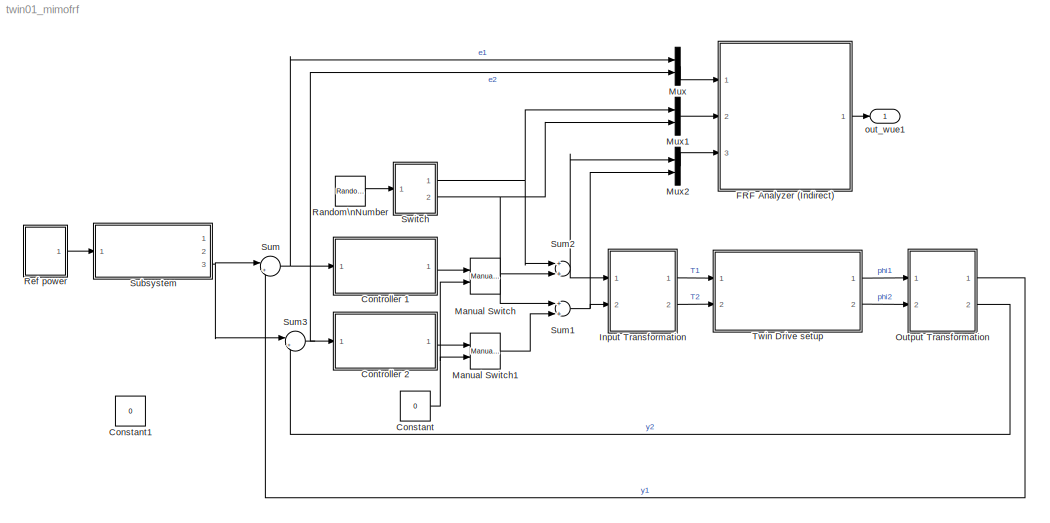
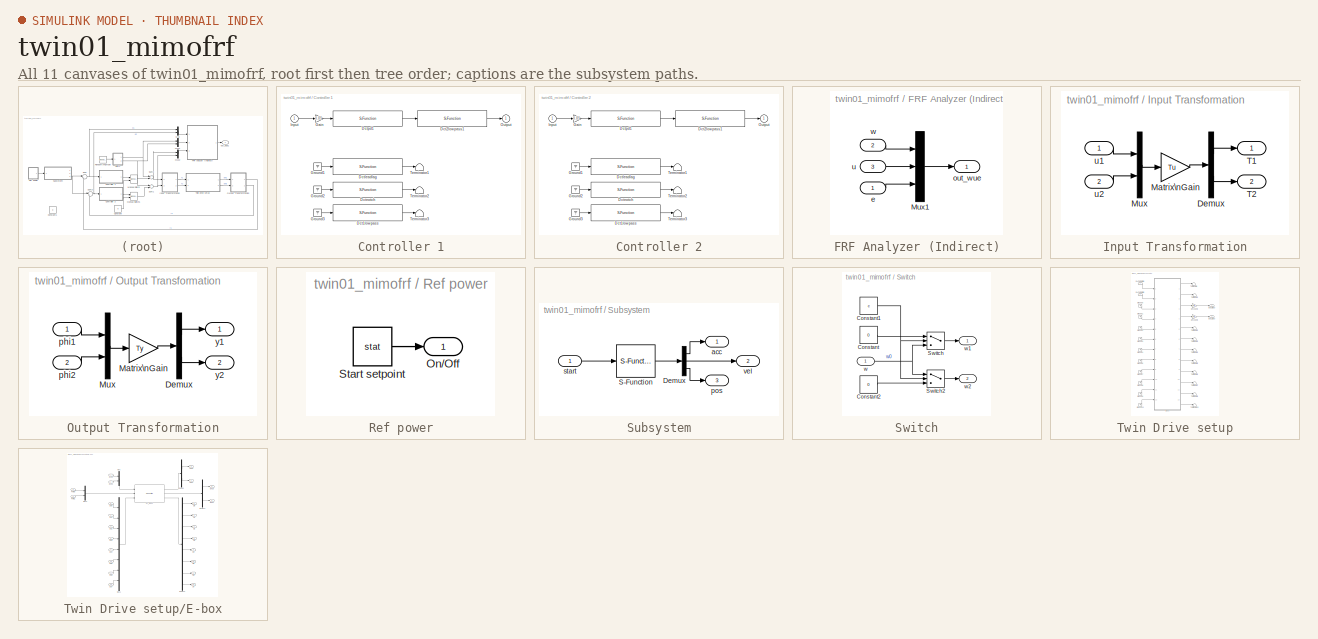
[diagram: thumbnail index - all 11 canvases of the model, root first then tree order]
MODEL twin01_mimofrf
KIND model
BLOCK [Constant] Constant
  SID = 1
  Value = 0
BLOCK [Constant] Constant1
  SID = 2
  Value = 0
BLOCK [SubSystem] Controller 1
  FunctionWithSeparateData = off
  MaskHideContents = off
  MinAlgLoopOccurrences = off
  Opaque = off
  Ports = [1, 1]
  PropExecContextOutsideSubsystem = off
  RTWSystemCode = Auto
  RequestExecContextInheritance = off
  SID = 198
BLOCK [S-Function] Controller 1/Dct1lowpass
  EnableBusSupport = off
  FunctionName = dlowpass1
  MaskDescription = This block implements a discrete time 1st order lowpass filter.
  MaskDisplay = disp('DCT 1st order lowpass')
  MaskEnableString = on
  MaskIconFrame = on
  MaskIconOpaque = on
  MaskIconRotate = none
  MaskIconUnits = autoscale
  MaskPortRotate = default
  MaskPromptString = Pole [Hz]
  MaskStyleString = edit
  MaskToolTipString = on
  MaskTunableValueString = on
  MaskType = dctools
  MaskValueString = 100
  MaskVariables = f_den=@1;
  MaskVisibilityString = on
  Parameters = f_den, 0.001
  Ports = [1, 1]
  SID = 200
BLOCK [S-Function] Controller 1/Dct2lowpass1
  EnableBusSupport = off
  FunctionName = dlowpass2
  MaskCallbackString = |
  MaskDescription = This block implements a discrete time 2nd order lowpass filter.
  MaskDisplay = disp('DCT 2nd order lowpass')
  MaskEnableString = on,on
  MaskIconFrame = on
  MaskIconOpaque = on
  MaskIconRotate = none
  MaskIconUnits = autoscale
  MaskPortRotate = default
  MaskPromptString = Pole [Hz]|Damping pole [-]
  MaskStyleString = edit,edit
  MaskToolTipString = on,on
  MaskTunableValueString = on,on
  MaskType = dctools
  MaskValueString = 200|0.6
  MaskVariables = f_den=@1;b_den=@2;
  MaskVisibilityString = on,on
  Parameters = f_den, b_den, 0.001
  Ports = [1, 1]
  SID = 201
BLOCK [S-Function] Controller 1/Dctleadlag
  EnableBusSupport = off
  FunctionName = dleadlag
  MaskCallbackString = |
  MaskDescription = This block implements a discrete time leadlag filter.
  MaskDisplay = disp('DCT leadlag')
  MaskEnableString = on,on
  MaskIconFrame = on
  MaskIconOpaque = on
  MaskIconRotate = none
  MaskIconUnits = autoscale
  MaskPortRotate = default
  MaskPromptString = Zero [Hz]|Pole [Hz]
  MaskStyleString = edit,edit
  MaskToolTipString = on,on
  MaskTunableValueString = on,on
  MaskType = dctools
  MaskValueString = 10|100
  MaskVariables = f_num=@1;f_den=@2;
  MaskVisibilityString = on,on
  Parameters = f_num, f_den, 0.001
  Ports = [1, 1]
  SID = 202
BLOCK [S-Function] Controller 1/Dctnotch
  EnableBusSupport = off
  FunctionName = dnotch
  MaskCallbackString = |||
  MaskDescription = This block implements a dicrete time 2nd order notch filter.
  MaskDisplay = disp('DCT notch')
  MaskEnableString = on,on,on,on
  MaskIconFrame = on
  MaskIconOpaque = on
  MaskIconRotate = none
  MaskIconUnits = autoscale
  MaskPortRotate = default
  MaskPromptString = Zero [Hz]|Damping zero [-]|Pole [Hz]|Damping pole [-]
  MaskStyleString = edit,edit,edit,edit
  MaskToolTipString = on,on,on,on
  MaskTunableValueString = on,on,on,on
  MaskType = dctools
  MaskValueString = 100|.1|100|.1
  MaskVariables = f_num=@1;b_num=@2;f_den=@3;b_den=@4;
  MaskVisibilityString = on,on,on,on
  Parameters = f_num, b_num, f_den, b_den, 0.001
  Ports = [1, 1]
  SID = 203
BLOCK [S-Function] Controller 1/Dctpd1
  EnableBusSupport = off
  FunctionName = dpd
  MaskCallbackString = |
  MaskDescription = This block implements a discrete time pd filter.
  MaskDisplay = disp('DCT pd')
  MaskEnableString = on,on
  MaskIconFrame = on
  MaskIconOpaque = on
  MaskIconRotate = none
  MaskIconUnits = autoscale
  MaskPortRotate = default
  MaskPromptString = Kp|Kv
  MaskStyleString = edit,edit
  MaskToolTipString = on,on
  MaskTunableValueString = on,on
  MaskType = dctools
  MaskValueString = 1|1/2/pi
  MaskVariables = kp=@1;kv=@2;
  MaskVisibilityString = on,on
  Parameters = kp, kv, 0.001
  Ports = [1, 1]
  SID = 204
BLOCK [Gain] Controller 1/Gain
  Gain = 0.05
  SID = 205
BLOCK [Ground] Controller 1/Ground1
  SID = 206
BLOCK [Ground] Controller 1/Ground2
  SID = 207
BLOCK [Ground] Controller 1/Ground3
  SID = 208
BLOCK [Inport] Controller 1/Input
  IconDisplay = Port number
  SID = 199
BLOCK [Outport] Controller 1/Output
  IconDisplay = Port number
  SID = 212
BLOCK [Terminator] Controller 1/Terminator1
  SID = 209
BLOCK [Terminator] Controller 1/Terminator2
  SID = 210
BLOCK [Terminator] Controller 1/Terminator3
  SID = 211
BLOCK [SubSystem] Controller 2
  FunctionWithSeparateData = off
  MaskHideContents = off
  MinAlgLoopOccurrences = off
  Opaque = off
  Ports = [1, 1]
  PropExecContextOutsideSubsystem = off
  RTWSystemCode = Auto
  RequestExecContextInheritance = off
  SID = 213
BLOCK [S-Function] Controller 2/Dct1lowpass
  EnableBusSupport = off
  FunctionName = dlowpass1
  MaskDescription = This block implements a discrete time 1st order lowpass filter.
  MaskDisplay = disp('DCT 1st order lowpass')
  MaskEnableString = on
  MaskIconFrame = on
  MaskIconOpaque = on
  MaskIconRotate = none
  MaskIconUnits = autoscale
  MaskPortRotate = default
  MaskPromptString = Pole [Hz]
  MaskStyleString = edit
  MaskToolTipString = on
  MaskTunableValueString = on
  MaskType = dctools
  MaskValueString = 100
  MaskVariables = f_den=@1;
  MaskVisibilityString = on
  Parameters = f_den, 0.001
  Ports = [1, 1]
  SID = 215
BLOCK [S-Function] Controller 2/Dct2lowpass1
  EnableBusSupport = off
  FunctionName = dlowpass2
  MaskCallbackString = |
  MaskDescription = This block implements a discrete time 2nd order lowpass filter.
  MaskDisplay = disp('DCT 2nd order lowpass')
  MaskEnableString = on,on
  MaskIconFrame = on
  MaskIconOpaque = on
  MaskIconRotate = none
  MaskIconUnits = autoscale
  MaskPortRotate = default
  MaskPromptString = Pole [Hz]|Damping pole [-]
  MaskStyleString = edit,edit
  MaskToolTipString = on,on
  MaskTunableValueString = on,on
  MaskType = dctools
  MaskValueString = 200|0.6
  MaskVariables = f_den=@1;b_den=@2;
  MaskVisibilityString = on,on
  Parameters = f_den, b_den, 0.001
  Ports = [1, 1]
  SID = 216
BLOCK [S-Function] Controller 2/Dctleadlag
  EnableBusSupport = off
  FunctionName = dleadlag
  MaskCallbackString = |
  MaskDescription = This block implements a discrete time leadlag filter.
  MaskDisplay = disp('DCT leadlag')
  MaskEnableString = on,on
  MaskIconFrame = on
  MaskIconOpaque = on
  MaskIconRotate = none
  MaskIconUnits = autoscale
  MaskPortRotate = default
  MaskPromptString = Zero [Hz]|Pole [Hz]
  MaskStyleString = edit,edit
  MaskToolTipString = on,on
  MaskTunableValueString = on,on
  MaskType = dctools
  MaskValueString = 10|100
  MaskVariables = f_num=@1;f_den=@2;
  MaskVisibilityString = on,on
  Parameters = f_num, f_den, 0.001
  Ports = [1, 1]
  SID = 217
BLOCK [S-Function] Controller 2/Dctnotch
  EnableBusSupport = off
  FunctionName = dnotch
  MaskCallbackString = |||
  MaskDescription = This block implements a dicrete time 2nd order notch filter.
  MaskDisplay = disp('DCT notch')
  MaskEnableString = on,on,on,on
  MaskIconFrame = on
  MaskIconOpaque = on
  MaskIconRotate = none
  MaskIconUnits = autoscale
  MaskPortRotate = default
  MaskPromptString = Zero [Hz]|Damping zero [-]|Pole [Hz]|Damping pole [-]
  MaskStyleString = edit,edit,edit,edit
  MaskToolTipString = on,on,on,on
  MaskTunableValueString = on,on,on,on
  MaskType = dctools
  MaskValueString = 100|.1|100|.1
  MaskVariables = f_num=@1;b_num=@2;f_den=@3;b_den=@4;
  MaskVisibilityString = on,on,on,on
  Parameters = f_num, b_num, f_den, b_den, 0.001
  Ports = [1, 1]
  SID = 218
BLOCK [S-Function] Controller 2/Dctpd1
  EnableBusSupport = off
  FunctionName = dpd
  MaskCallbackString = |
  MaskDescription = This block implements a discrete time pd filter.
  MaskDisplay = disp('DCT pd')
  MaskEnableString = on,on
  MaskIconFrame = on
  MaskIconOpaque = on
  MaskIconRotate = none
  MaskIconUnits = autoscale
  MaskPortRotate = default
  MaskPromptString = Kp|Kv
  MaskStyleString = edit,edit
  MaskToolTipString = on,on
  MaskTunableValueString = on,on
  MaskType = dctools
  MaskValueString = 1|1/2/pi
  MaskVariables = kp=@1;kv=@2;
  MaskVisibilityString = on,on
  Parameters = kp, kv, 0.001
  Ports = [1, 1]
  SID = 219
BLOCK [Gain] Controller 2/Gain
  Gain = 0.05
  SID = 220
BLOCK [Ground] Controller 2/Ground1
  SID = 221
BLOCK [Ground] Controller 2/Ground2
  SID = 222
BLOCK [Ground] Controller 2/Ground3
  SID = 223
BLOCK [Inport] Controller 2/Input
  IconDisplay = Port number
  SID = 214
BLOCK [Outport] Controller 2/Output
  IconDisplay = Port number
  SID = 227
BLOCK [Terminator] Controller 2/Terminator1
  SID = 224
BLOCK [Terminator] Controller 2/Terminator2
  SID = 225
BLOCK [Terminator] Controller 2/Terminator3
  SID = 226
BLOCK [SubSystem] FRF Analyzer (Indirect)
  FunctionWithSeparateData = off
  MaskHideContents = off
  MinAlgLoopOccurrences = off
  Opaque = off
  OpenFcn = calcfrfindirectmimo(1,1000)
  Ports = [3, 1]
  PropExecContextOutsideSubsystem = off
  RTWSystemCode = Auto
  RequestExecContextInheritance = off
  SID = 33
BLOCK [Mux] FRF Analyzer (Indirect)/Mux1
  DisplayOption = bar
  Inputs = 3
  Ports = [3, 1]
  SID = 37
BLOCK [Inport] FRF Analyzer (Indirect)/e
  IconDisplay = Port number
  SID = 34
BLOCK [Outport] FRF Analyzer (Indirect)/out_wue
  IconDisplay = Port number
  OpenFcn = frf3(1,10000)
  SID = 38
BLOCK [Inport] FRF Analyzer (Indirect)/u
  IconDisplay = Port number
  Port = 3
  SID = 36
BLOCK [Inport] FRF Analyzer (Indirect)/w
  IconDisplay = Port number
  Port = 2
  SID = 35
BLOCK [SubSystem] Input Transformation
  FunctionWithSeparateData = off
  MaskDescription = This block performs an input transformation of the form:\n[T1;T2]=Tu*[u1;u2]\n
  MaskEnableString = on
  MaskHideContents = off
  MaskIconFrame = on
  MaskIconOpaque = on
  MaskIconRotate = none
  MaskIconUnits = autoscale
  MaskPortRotate = default
  MaskPromptString = What is the input transformation matrix Tu?
  MaskStyleString = edit
  MaskToolTipString = on
  MaskTunableValueString = on
  MaskType = Input Transformation
  MaskValueString = [1 0; 0 1]
  MaskVariables = Tu=@1;
  MaskVisibilityString = on
  MinAlgLoopOccurrences = off
  Opaque = off
  Ports = [2, 2]
  PropExecContextOutsideSubsystem = off
  RTWSystemCode = Auto
  RequestExecContextInheritance = off
  SID = 39
BLOCK [Demux] Input Transformation/Demux
  Outputs = 2
  Ports = [1, 2]
  SID = 42
BLOCK [Gain] Input Transformation/Matrix\nGain
  Gain = Tu
  Multiplication = Matrix(K*u)
  SID = 43
BLOCK [Mux] Input Transformation/Mux
  DisplayOption = bar
  Inputs = 2
  Ports = [2, 1]
  SID = 44
BLOCK [Outport] Input Transformation/T1
  IconDisplay = Port number
  SID = 45
BLOCK [Outport] Input Transformation/T2
  IconDisplay = Port number
  Port = 2
  SID = 46
BLOCK [Inport] Input Transformation/u1
  IconDisplay = Port number
  SID = 40
BLOCK [Inport] Input Transformation/u2
  IconDisplay = Port number
  Port = 2
  SID = 41
BLOCK [Reference] Manual Switch  REF=simulink/Signal\nRouting/Manual Switch
  Ports = [2, 1]
  SID = 47
  SourceBlock = simulink/Signal\nRouting/Manual Switch
  SourceType = Manual Switch
  action = 0
  sw = 1
  varsize = off
BLOCK [Reference] Manual Switch1  REF=simulink/Signal\nRouting/Manual Switch
  Ports = [2, 1]
  SID = 48
  SourceBlock = simulink/Signal\nRouting/Manual Switch
  SourceType = Manual Switch
  action = 0
  sw = 1
  varsize = off
BLOCK [Mux] Mux
  DisplayOption = bar
  Inputs = 2
  Ports = [2, 1]
  SID = 49
BLOCK [Mux] Mux1
  DisplayOption = bar
  Inputs = 2
  Ports = [2, 1]
  SID = 50
BLOCK [Mux] Mux2
  DisplayOption = bar
  Inputs = 2
  Ports = [2, 1]
  SID = 51
BLOCK [SubSystem] Output Transformation
  FunctionWithSeparateData = off
  MaskDescription = This block performs an output transformation of the form:\n[y1;y2]=Ty*[phi1;phi2]
  MaskEnableString = on
  MaskHideContents = off
  MaskIconFrame = on
  MaskIconOpaque = on
  MaskIconRotate = none
  MaskIconUnits = autoscale
  MaskPortRotate = default
  MaskPromptString = What is the output transformation matrix Ty?
  MaskStyleString = edit
  MaskToolTipString = on
  MaskTunableValueString = on
  MaskType = Iutput Transformation
  MaskValueString = [1 0; 0 1]
  MaskVariables = Ty=@1;
  MaskVisibilityString = on
  MinAlgLoopOccurrences = off
  Opaque = off
  Ports = [2, 2]
  PropExecContextOutsideSubsystem = off
  RTWSystemCode = Auto
  RequestExecContextInheritance = off
  SID = 52
BLOCK [Demux] Output Transformation/Demux
  Outputs = 2
  Ports = [1, 2]
  SID = 55
BLOCK [Gain] Output Transformation/Matrix\nGain
  Gain = Ty
  Multiplication = Matrix(K*u)
  SID = 56
BLOCK [Mux] Output Transformation/Mux
  DisplayOption = bar
  Inputs = 2
  Ports = [2, 1]
  SID = 57
BLOCK [Inport] Output Transformation/phi1
  IconDisplay = Port number
  SID = 53
BLOCK [Inport] Output Transformation/phi2
  IconDisplay = Port number
  Port = 2
  SID = 54
BLOCK [Outport] Output Transformation/y1
  IconDisplay = Port number
  SID = 58
BLOCK [Outport] Output Transformation/y2
  IconDisplay = Port number
  Port = 2
  SID = 59
BLOCK [RandomNumber] Random\nNumber
  SID = 60
  SampleTime = 0
  Variance = 0.2
BLOCK [SubSystem] Ref power
  FunctionWithSeparateData = off
  MaskEnableString = on
  MaskHideContents = off
  MaskIconFrame = on
  MaskIconOpaque = off
  MaskIconRotate = none
  MaskIconUnits = autoscale
  MaskPortRotate = default
  MaskPromptString = Switch
  MaskStyleString = popup(On|Off)
  MaskToolTipString = on
  MaskTunableValueString = on
  MaskType = On/Off Switch
  MaskValueString = Off
  MaskVariables = stat=@1;
  MaskVisibilityString = on
  MinAlgLoopOccurrences = off
  Opaque = off
  Ports = [0, 1]
  PropExecContextOutsideSubsystem = off
  RTWSystemCode = Auto
  RequestExecContextInheritance = off
  SID = 188
BLOCK [Outport] Ref power/On//Off
  IconDisplay = Port number
  SID = 190
BLOCK [Constant] Ref power/Start setpoint
  SID = 189
  Value = stat
BLOCK [SubSystem] Subsystem
  FunctionWithSeparateData = off
  MaskDisplay = disp('Ref3');\n
  MaskHideContents = off
  MaskIconFrame = off
  MaskIconOpaque = off
  MaskIconRotate = none
  MaskIconUnits = autoscale
  MaskPortRotate = default
  MaskType = Ref3
  MinAlgLoopOccurrences = off
  Opaque = off
  OpenFcn = global ref_part; cb_axes 1
  Ports = [1, 3]
  PropExecContextOutsideSubsystem = off
  RTWSystemCode = Auto
  RequestExecContextInheritance = off
  SID = 191
BLOCK [Demux] Subsystem/Demux
  Outputs = 3
  Ports = [1, 3]
  SID = 193
BLOCK [S-Function] Subsystem/S-Function
  EnableBusSupport = off
  FunctionName = ref3b
  OpenFcn = global ref_part; r3g_main
  Parameters = ref_part
  Ports = [1, 1]
  SID = 194
BLOCK [Outport] Subsystem/acc
  IconDisplay = Port number
  SID = 195
BLOCK [Outport] Subsystem/pos
  IconDisplay = Port number
  Port = 3
  SID = 197
BLOCK [Inport] Subsystem/start
  IconDisplay = Port number
  SID = 192
BLOCK [Outport] Subsystem/vel
  IconDisplay = Port number
  Port = 2
  SID = 196
BLOCK [Sum] Sum
  IconShape = round
  Inputs = |+-
  Ports = [2, 1]
  SID = 70
BLOCK [Sum] Sum1
  Description = sumff
  Ports = [2, 1]
  SID = 71
BLOCK [Sum] Sum2
  Description = sumff
  Ports = [2, 1]
  SID = 72
BLOCK [Sum] Sum3
  IconShape = round
  Inputs = |+-
  Ports = [2, 1]
  SID = 73
BLOCK [SubSystem] Switch
  FunctionWithSeparateData = off
  MaskEnableString = on
  MaskHideContents = off
  MaskIconFrame = on
  MaskIconOpaque = on
  MaskIconRotate = none
  MaskIconUnits = autoscale
  MaskPortRotate = default
  MaskPromptString = In which loop noise? 1 for loop 1 or 2 for loop 2
  MaskStyleString = edit
  MaskToolTipString = on
  MaskTunableValueString = on
  MaskType = Switch
  MaskValueString = 1
  MaskVariables = c=@1;
  MaskVisibilityString = on
  MinAlgLoopOccurrences = off
  Opaque = off
  Ports = [1, 2]
  PropExecContextOutsideSubsystem = off
  RTWSystemCode = Auto
  RequestExecContextInheritance = off
  SID = 74
BLOCK [Constant] Switch/Constant
  SID = 76
  Value = 0
BLOCK [Constant] Switch/Constant1
  SID = 77
  Value = c
BLOCK [Constant] Switch/Constant2
  SID = 78
  Value = 0
BLOCK [Switch] Switch/Switch
  SID = 79
  Threshold = 1.5
BLOCK [Switch] Switch/Switch2
  SID = 80
  Threshold = 1.5
BLOCK [Inport] Switch/w
  IconDisplay = Port number
  SID = 75
BLOCK [Outport] Switch/w1
  IconDisplay = Port number
  SID = 81
BLOCK [Outport] Switch/w2
  IconDisplay = Port number
  Port = 2
  SID = 82
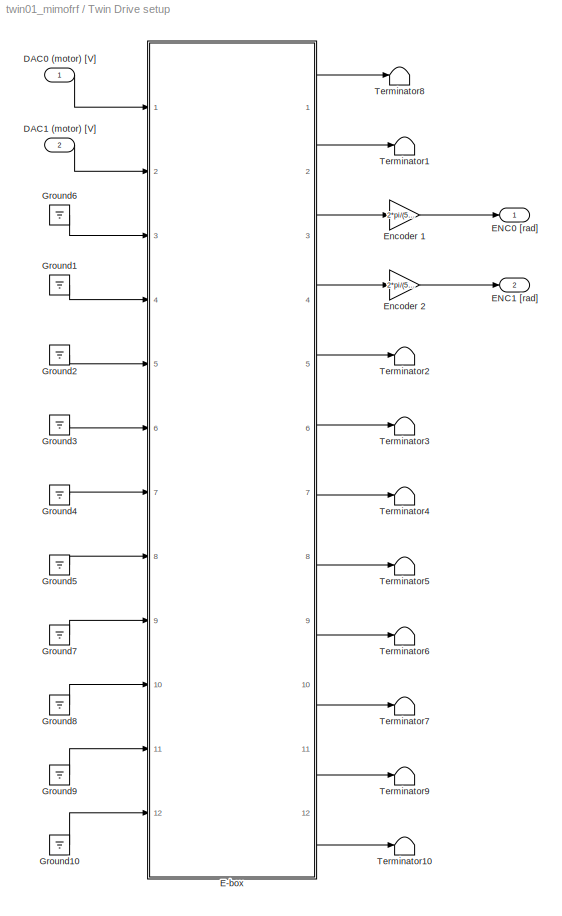
BLOCK [SubSystem] Twin Drive setup
  FunctionWithSeparateData = off
  MaskDescription = MIMO system with two inputs and two outputs.
  MaskDisplay = image(imread('twin.bmp'))
  MaskHideContents = off
  MaskIconFrame = on
  MaskIconOpaque = on
  MaskIconRotate = none
  MaskIconUnits = autoscale
  MaskPortRotate = default
  MaskType = Twin Drive
  MinAlgLoopOccurrences = off
  Opaque = off
  Ports = [2, 2]
  PropExecContextOutsideSubsystem = off
  RTWSystemCode = Auto
  RequestExecContextInheritance = off
  SID = 129
BLOCK [Inport] Twin Drive setup/DAC0 (motor) [V]
  IconDisplay = Port number
  SID = 130
BLOCK [Inport] Twin Drive setup/DAC1 (motor) [V]
  IconDisplay = Port number
  Port = 2
  SID = 131
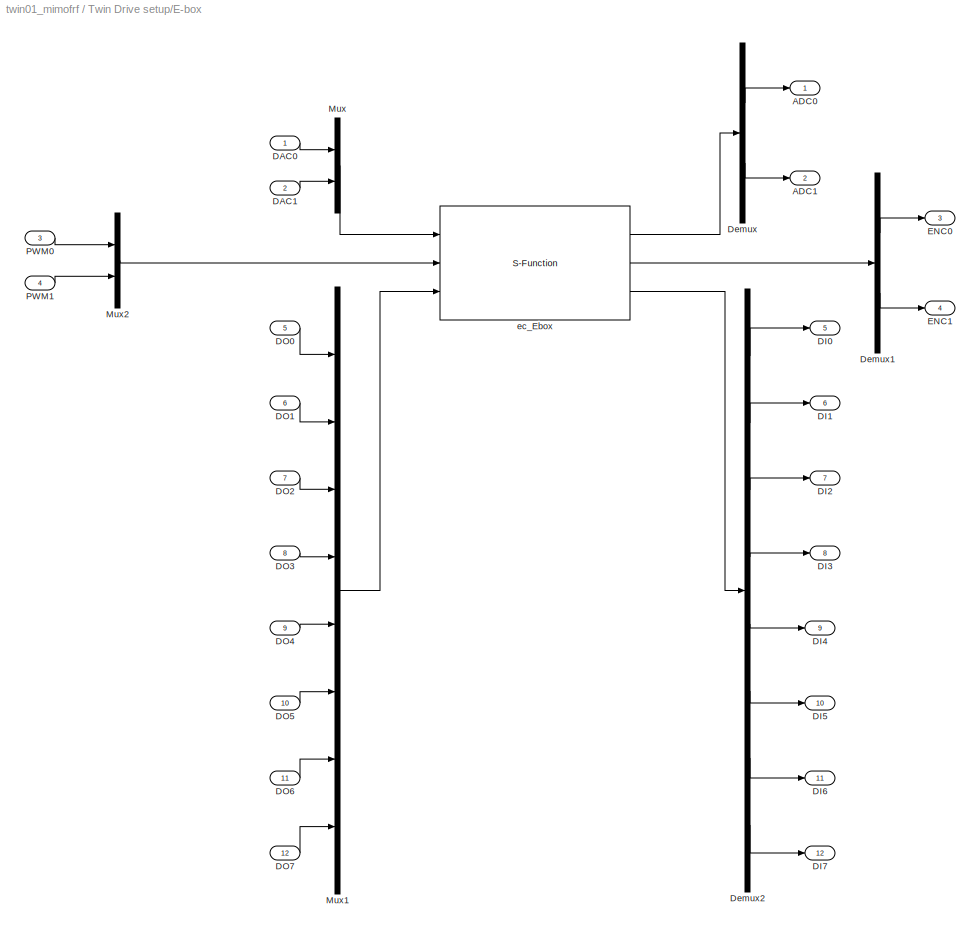
BLOCK [SubSystem] Twin Drive setup/E-box
  FunctionWithSeparateData = off
  MaskEnableString = on
  MaskHideContents = off
  MaskIconFrame = on
  MaskIconOpaque = on
  MaskIconRotate = none
  MaskIconUnits = autoscale
  MaskPortRotate = default
  MaskPromptString = Link id (>=0)
  MaskStyleString = edit
  MaskToolTipString = on
  MaskTunableValueString = on
  MaskType = E-box
  MaskValueString = 0
  MaskVariables = link_id=@1;
  MaskVisibilityString = on
  MinAlgLoopOccurrences = off
  Opaque = off
  Ports = [12, 12]
  PropExecContextOutsideSubsystem = off
  RTWSystemCode = Auto
  RequestExecContextInheritance = off
  SID = 132
BLOCK [Outport] Twin Drive setup/E-box/ADC0
  IconDisplay = Port number
  SID = 152
BLOCK [Outport] Twin Drive setup/E-box/ADC1
  IconDisplay = Port number
  Port = 2
  SID = 153
BLOCK [Inport] Twin Drive setup/E-box/DAC0
  IconDisplay = Port number
  SID = 133
BLOCK [Inport] Twin Drive setup/E-box/DAC1
  IconDisplay = Port number
  Port = 2
  SID = 134
BLOCK [Outport] Twin Drive setup/E-box/DI0
  IconDisplay = Port number
  Port = 5
  SID = 156
BLOCK [Outport] Twin Drive setup/E-box/DI1
  IconDisplay = Port number
  Port = 6
  SID = 157
BLOCK [Outport] Twin Drive setup/E-box/DI2
  IconDisplay = Port number
  Port = 7
  SID = 158
BLOCK [Outport] Twin Drive setup/E-box/DI3
  IconDisplay = Port number
  Port = 8
  SID = 159
BLOCK [Outport] Twin Drive setup/E-box/DI4
  IconDisplay = Port number
  Port = 9
  SID = 160
BLOCK [Outport] Twin Drive setup/E-box/DI5
  IconDisplay = Port number
  Port = 10
  SID = 161
BLOCK [Outport] Twin Drive setup/E-box/DI6
  IconDisplay = Port number
  Port = 11
  SID = 162
BLOCK [Outport] Twin Drive setup/E-box/DI7
  IconDisplay = Port number
  Port = 12
  SID = 163
BLOCK [Inport] Twin Drive setup/E-box/DO0
  IconDisplay = Port number
  Port = 5
  SID = 137
BLOCK [Inport] Twin Drive setup/E-box/DO1
  IconDisplay = Port number
  Port = 6
  SID = 138
BLOCK [Inport] Twin Drive setup/E-box/DO2
  IconDisplay = Port number
  Port = 7
  SID = 139
BLOCK [Inport] Twin Drive setup/E-box/DO3
  IconDisplay = Port number
  Port = 8
  SID = 140
BLOCK [Inport] Twin Drive setup/E-box/DO4
  IconDisplay = Port number
  Port = 9
  SID = 141
BLOCK [Inport] Twin Drive setup/E-box/DO5
  IconDisplay = Port number
  Port = 10
  SID = 142
BLOCK [Inport] Twin Drive setup/E-box/DO6
  IconDisplay = Port number
  Port = 11
  SID = 143
BLOCK [Inport] Twin Drive setup/E-box/DO7
  IconDisplay = Port number
  Port = 12
  SID = 144
BLOCK [Demux] Twin Drive setup/E-box/Demux
  DisplayOption = bar
  Outputs = 2
  Ports = [1, 2]
  SID = 145
BLOCK [Demux] Twin Drive setup/E-box/Demux1
  DisplayOption = bar
  Outputs = 2
  Ports = [1, 2]
  SID = 146
BLOCK [Demux] Twin Drive setup/E-box/Demux2
  DisplayOption = bar
  Outputs = 8
  Ports = [1, 8]
  SID = 147
BLOCK [Outport] Twin Drive setup/E-box/ENC0
  IconDisplay = Port number
  Port = 3
  SID = 154
BLOCK [Outport] Twin Drive setup/E-box/ENC1
  IconDisplay = Port number
  Port = 4
  SID = 155
BLOCK [Mux] Twin Drive setup/E-box/Mux
  DisplayOption = bar
  Inputs = 2
  Ports = [2, 1]
  SID = 148
BLOCK [Mux] Twin Drive setup/E-box/Mux1
  DisplayOption = bar
  Inputs = 8
  Ports = [8, 1]
  SID = 149
BLOCK [Mux] Twin Drive setup/E-box/Mux2
  DisplayOption = bar
  Inputs = 2
  Ports = [2, 1]
  SID = 150
BLOCK [Inport] Twin Drive setup/E-box/PWM0
  IconDisplay = Port number
  Port = 3
  SID = 135
BLOCK [Inport] Twin Drive setup/E-box/PWM1
  IconDisplay = Port number
  Port = 4
  SID = 136
BLOCK [S-Function] Twin Drive setup/E-box/ec_Ebox
  EnableBusSupport = off
  FunctionName = ec_Ebox
  MaskDisplay = port_label('output',1,'ADC')\nport_label('output',2,'ENC')\nport_label('output',3,'DI')\nport_label('input',1,'DAC')\nport_label('input',2,'PWM')\nport_label('input',3,'DO')
  MaskEnableString = on
  MaskIconFrame = on
  MaskIconOpaque = on
  MaskIconRotate = none
  MaskIconUnits = autoscale
  MaskPortRotate = default
  MaskPromptString = analog in id (start from 1)
  MaskStyleString = edit
  MaskToolTipString = on
  MaskTunableValueString = on
  MaskValueString = link_id
  MaskVariables = link_id=@1;
  MaskVisibilityString = on
  Parameters = link_id
  Ports = [3, 3]
  SID = 151
BLOCK [Outport] Twin Drive setup/ENC0 [rad]
  IconDisplay = Port number
  SID = 186
BLOCK [Outport] Twin Drive setup/ENC1 [rad]
  IconDisplay = Port number
  Port = 2
  SID = 187
BLOCK [Gain] Twin Drive setup/Encoder 1
  Gain = 2*pi/(500*4)
  SID = 164
BLOCK [Gain] Twin Drive setup/Encoder 2
  Gain = 2*pi/(500*4)
  SID = 165
BLOCK [Ground] Twin Drive setup/Ground1
  SID = 166
BLOCK [Ground] Twin Drive setup/Ground10
  SID = 167
BLOCK [Ground] Twin Drive setup/Ground2
  SID = 168
BLOCK [Ground] Twin Drive setup/Ground3
  SID = 169
BLOCK [Ground] Twin Drive setup/Ground4
  SID = 170
BLOCK [Ground] Twin Drive setup/Ground5
  SID = 171
BLOCK [Ground] Twin Drive setup/Ground6
  SID = 172
BLOCK [Ground] Twin Drive setup/Ground7
  SID = 173
BLOCK [Ground] Twin Drive setup/Ground8
  SID = 174
BLOCK [Ground] Twin Drive setup/Ground9
  SID = 175
BLOCK [Terminator] Twin Drive setup/Terminator1
  SID = 176
BLOCK [Terminator] Twin Drive setup/Terminator10
  SID = 177
BLOCK [Terminator] Twin Drive setup/Terminator2
  SID = 178
BLOCK [Terminator] Twin Drive setup/Terminator3
  SID = 179
BLOCK [Terminator] Twin Drive setup/Terminator4
  SID = 180
BLOCK [Terminator] Twin Drive setup/Terminator5
  SID = 181
BLOCK [Terminator] Twin Drive setup/Terminator6
  SID = 182
BLOCK [Terminator] Twin Drive setup/Terminator7
  SID = 183
BLOCK [Terminator] Twin Drive setup/Terminator8
  SID = 184
BLOCK [Terminator] Twin Drive setup/Terminator9
  SID = 185
BLOCK [Outport] out_wue1
  IconDisplay = Port number
  OpenFcn = frf3(1,10000)
  SID = 128
NET Constant:1 -> Manual Switch1:2, Manual Switch:2
LINE Controller 1/Dct1lowpass:1 -> Controller 1/Terminator3:1
LINE Controller 1/Dct2lowpass1:1 -> Controller 1/Output:1
LINE Controller 1/Dctleadlag:1 -> Controller 1/Terminator1:1
LINE Controller 1/Dctnotch:1 -> Controller 1/Terminator2:1
LINE Controller 1/Dctpd1:1 -> Controller 1/Dct2lowpass1:1
LINE Controller 1/Gain:1 -> Controller 1/Dctpd1:1
LINE Controller 1/Ground1:1 -> Controller 1/Dctleadlag:1
LINE Controller 1/Ground2:1 -> Controller 1/Dctnotch:1
LINE Controller 1/Ground3:1 -> Controller 1/Dct1lowpass:1
LINE Controller 1/Input:1 -> Controller 1/Gain:1
LINE Controller 1:1 -> Manual Switch:1
LINE Controller 2/Dct1lowpass:1 -> Controller 2/Terminator3:1
LINE Controller 2/Dct2lowpass1:1 -> Controller 2/Output:1
LINE Controller 2/Dctleadlag:1 -> Controller 2/Terminator1:1
LINE Controller 2/Dctnotch:1 -> Controller 2/Terminator2:1
LINE Controller 2/Dctpd1:1 -> Controller 2/Dct2lowpass1:1
LINE Controller 2/Gain:1 -> Controller 2/Dctpd1:1
LINE Controller 2/Ground1:1 -> Controller 2/Dctleadlag:1
LINE Controller 2/Ground2:1 -> Controller 2/Dctnotch:1
LINE Controller 2/Ground3:1 -> Controller 2/Dct1lowpass:1
LINE Controller 2/Input:1 -> Controller 2/Gain:1
LINE Controller 2:1 -> Manual Switch1:1
LINE FRF Analyzer (Indirect)/Mux1:1 -> FRF Analyzer (Indirect)/out_wue:1
LINE FRF Analyzer (Indirect)/e:1 -> FRF Analyzer (Indirect)/Mux1:3
LINE FRF Analyzer (Indirect)/u:1 -> FRF Analyzer (Indirect)/Mux1:2
LINE FRF Analyzer (Indirect)/w:1 -> FRF Analyzer (Indirect)/Mux1:1
LINE FRF Analyzer (Indirect):1 -> out_wue1:1
LINE Input Transformation/Demux:1 -> Input Transformation/T1:1
LINE Input Transformation/Demux:2 -> Input Transformation/T2:1
LINE Input Transformation/Matrix\nGain:1 -> Input Transformation/Demux:1
LINE Input Transformation/Mux:1 -> Input Transformation/Matrix\nGain:1
LINE Input Transformation/u1:1 -> Input Transformation/Mux:1
LINE Input Transformation/u2:1 -> Input Transformation/Mux:2
LINE Input Transformation:1 -> Twin Drive setup:1
LINE Input Transformation:2 -> Twin Drive setup:2
LINE Manual Switch1:1 -> Sum1:2
LINE Manual Switch:1 -> Sum2:2
LINE Mux1:1 -> FRF Analyzer (Indirect):2
LINE Mux2:1 -> FRF Analyzer (Indirect):3
LINE Mux:1 -> FRF Analyzer (Indirect):1
LINE Output Transformation/Demux:1 -> Output Transformation/y1:1
LINE Output Transformation/Demux:2 -> Output Transformation/y2:1
LINE Output Transformation/Matrix\nGain:1 -> Output Transformation/Demux:1
LINE Output Transformation/Mux:1 -> Output Transformation/Matrix\nGain:1
LINE Output Transformation/phi1:1 -> Output Transformation/Mux:1
LINE Output Transformation/phi2:1 -> Output Transformation/Mux:2
LINE Output Transformation:1 -> Sum:2
LINE Output Transformation:2 -> Sum3:2
LINE Random\nNumber:1 -> Switch:1
LINE Ref power/Start setpoint:1 -> Ref power/On//Off:1
LINE Ref power:1 -> Subsystem:1
LINE Subsystem/Demux:1 -> Subsystem/acc:1
LINE Subsystem/Demux:2 -> Subsystem/vel:1
LINE Subsystem/Demux:3 -> Subsystem/pos:1
LINE Subsystem/S-Function:1 -> Subsystem/Demux:1
LINE Subsystem/start:1 -> Subsystem/S-Function:1
NET Subsystem:3 -> Sum3:1, Sum:1
NET Sum1:1 -> Input Transformation:2, Mux2:2
NET Sum2:1 -> Input Transformation:1, Mux2:1
NET Sum3:1 -> Controller 2:1, Mux:2
NET Sum:1 -> Controller 1:1, Mux:1
NET Switch/Constant1:1 -> Switch/Switch2:2, Switch/Switch:2
LINE Switch/Constant2:1 -> Switch/Switch2:3
LINE Switch/Constant:1 -> Switch/Switch:1
LINE Switch/Switch2:1 -> Switch/w2:1
LINE Switch/Switch:1 -> Switch/w1:1
NET Switch/w:1 -> Switch/Switch2:1, Switch/Switch:3
NET Switch:1 -> Mux1:1, Sum2:1
NET Switch:2 -> Mux1:2, Sum1:1
LINE Twin Drive setup/DAC0 (motor) [V]:1 -> Twin Drive setup/E-box:1
LINE Twin Drive setup/DAC1 (motor) [V]:1 -> Twin Drive setup/E-box:2
LINE Twin Drive setup/E-box/DAC0:1 -> Twin Drive setup/E-box/Mux:1
LINE Twin Drive setup/E-box/DAC1:1 -> Twin Drive setup/E-box/Mux:2
LINE Twin Drive setup/E-box/DO0:1 -> Twin Drive setup/E-box/Mux1:1
LINE Twin Drive setup/E-box/DO1:1 -> Twin Drive setup/E-box/Mux1:2
LINE Twin Drive setup/E-box/DO2:1 -> Twin Drive setup/E-box/Mux1:3
LINE Twin Drive setup/E-box/DO3:1 -> Twin Drive setup/E-box/Mux1:4
LINE Twin Drive setup/E-box/DO4:1 -> Twin Drive setup/E-box/Mux1:5
LINE Twin Drive setup/E-box/DO5:1 -> Twin Drive setup/E-box/Mux1:6
LINE Twin Drive setup/E-box/DO6:1 -> Twin Drive setup/E-box/Mux1:7
LINE Twin Drive setup/E-box/DO7:1 -> Twin Drive setup/E-box/Mux1:8
LINE Twin Drive setup/E-box/Demux1:1 -> Twin Drive setup/E-box/ENC0:1
LINE Twin Drive setup/E-box/Demux1:2 -> Twin Drive setup/E-box/ENC1:1
LINE Twin Drive setup/E-box/Demux2:1 -> Twin Drive setup/E-box/DI0:1
LINE Twin Drive setup/E-box/Demux2:2 -> Twin Drive setup/E-box/DI1:1
LINE Twin Drive setup/E-box/Demux2:3 -> Twin Drive setup/E-box/DI2:1
LINE Twin Drive setup/E-box/Demux2:4 -> Twin Drive setup/E-box/DI3:1
LINE Twin Drive setup/E-box/Demux2:5 -> Twin Drive setup/E-box/DI4:1
LINE Twin Drive setup/E-box/Demux2:6 -> Twin Drive setup/E-box/DI5:1
LINE Twin Drive setup/E-box/Demux2:7 -> Twin Drive setup/E-box/DI6:1
LINE Twin Drive setup/E-box/Demux2:8 -> Twin Drive setup/E-box/DI7:1
LINE Twin Drive setup/E-box/Demux:1 -> Twin Drive setup/E-box/ADC0:1
LINE Twin Drive setup/E-box/Demux:2 -> Twin Drive setup/E-box/ADC1:1
LINE Twin Drive setup/E-box/Mux1:1 -> Twin Drive setup/E-box/ec_Ebox:3
LINE Twin Drive setup/E-box/Mux2:1 -> Twin Drive setup/E-box/ec_Ebox:2
LINE Twin Drive setup/E-box/Mux:1 -> Twin Drive setup/E-box/ec_Ebox:1
LINE Twin Drive setup/E-box/PWM0:1 -> Twin Drive setup/E-box/Mux2:1
LINE Twin Drive setup/E-box/PWM1:1 -> Twin Drive setup/E-box/Mux2:2
LINE Twin Drive setup/E-box/ec_Ebox:1 -> Twin Drive setup/E-box/Demux:1
LINE Twin Drive setup/E-box/ec_Ebox:2 -> Twin Drive setup/E-box/Demux1:1
LINE Twin Drive setup/E-box/ec_Ebox:3 -> Twin Drive setup/E-box/Demux2:1
LINE Twin Drive setup/E-box:1 -> Twin Drive setup/Terminator8:1
LINE Twin Drive setup/E-box:10 -> Twin Drive setup/Terminator7:1
LINE Twin Drive setup/E-box:11 -> Twin Drive setup/Terminator9:1
LINE Twin Drive setup/E-box:12 -> Twin Drive setup/Terminator10:1
LINE Twin Drive setup/E-box:2 -> Twin Drive setup/Terminator1:1
LINE Twin Drive setup/E-box:3 -> Twin Drive setup/Encoder 1:1
LINE Twin Drive setup/E-box:4 -> Twin Drive setup/Encoder 2:1
LINE Twin Drive setup/E-box:5 -> Twin Drive setup/Terminator2:1
LINE Twin Drive setup/E-box:6 -> Twin Drive setup/Terminator3:1
LINE Twin Drive setup/E-box:7 -> Twin Drive setup/Terminator4:1
LINE Twin Drive setup/E-box:8 -> Twin Drive setup/Terminator5:1
LINE Twin Drive setup/E-box:9 -> Twin Drive setup/Terminator6:1
LINE Twin Drive setup/Encoder 1:1 -> Twin Drive setup/ENC0 [rad]:1
LINE Twin Drive setup/Encoder 2:1 -> Twin Drive setup/ENC1 [rad]:1
LINE Twin Drive setup/Ground10:1 -> Twin Drive setup/E-box:12
LINE Twin Drive setup/Ground1:1 -> Twin Drive setup/E-box:4
LINE Twin Drive setup/Ground2:1 -> Twin Drive setup/E-box:5
LINE Twin Drive setup/Ground3:1 -> Twin Drive setup/E-box:6
LINE Twin Drive setup/Ground4:1 -> Twin Drive setup/E-box:7
LINE Twin Drive setup/Ground5:1 -> Twin Drive setup/E-box:8
LINE Twin Drive setup/Ground6:1 -> Twin Drive setup/E-box:3
LINE Twin Drive setup/Ground7:1 -> Twin Drive setup/E-box:9
LINE Twin Drive setup/Ground8:1 -> Twin Drive setup/E-box:10
LINE Twin Drive setup/Ground9:1 -> Twin Drive setup/E-box:11
LINE Twin Drive setup:1 -> Output Transformation:1
LINE Twin Drive setup:2 -> Output Transformation:2
note: NET lines group one-source signal fan-out (src -> all destinations, sorted); 1:1 wires keep LINE
